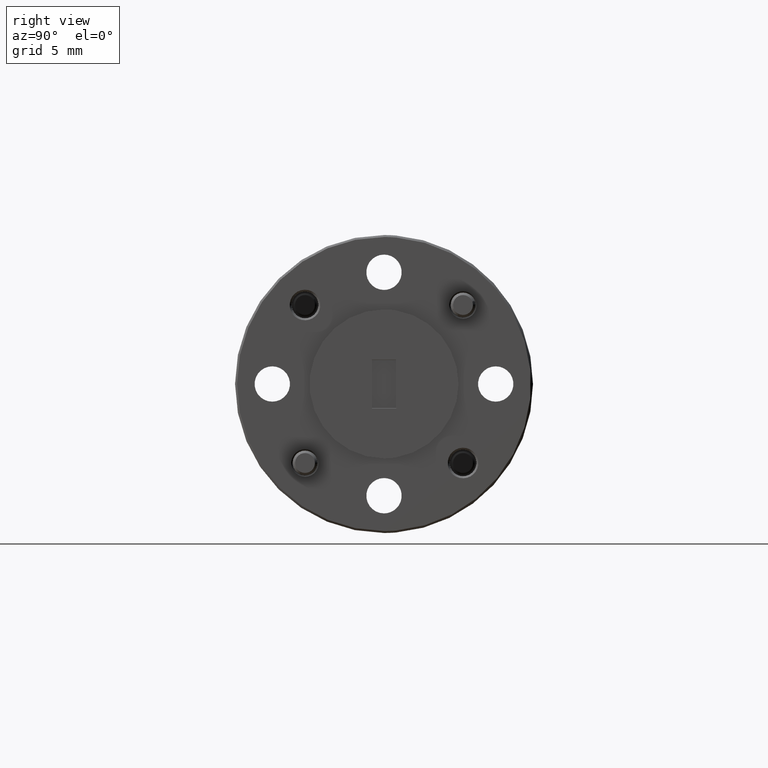
[diagram: clean part render]
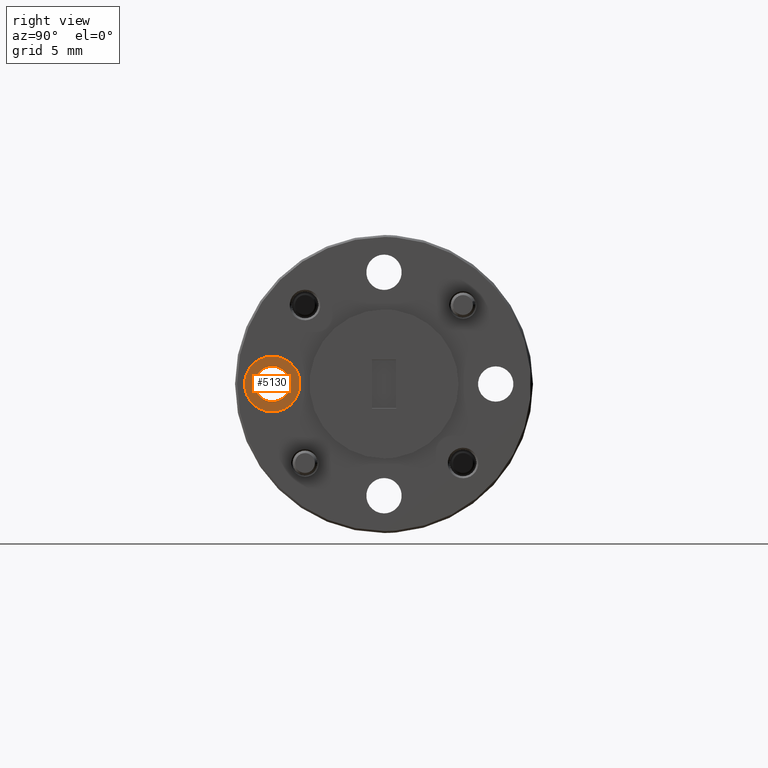
[diagram: same view with one face highlighted and labeled with its STEP entity id]
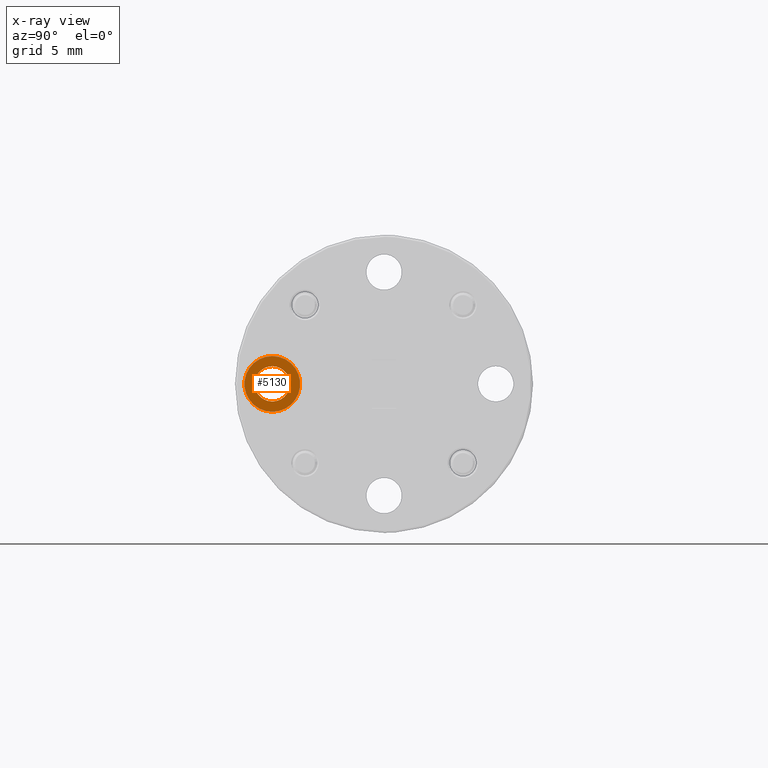
[diagram: x-ray of the same camera — body ghosted, the highlighted face saturated]
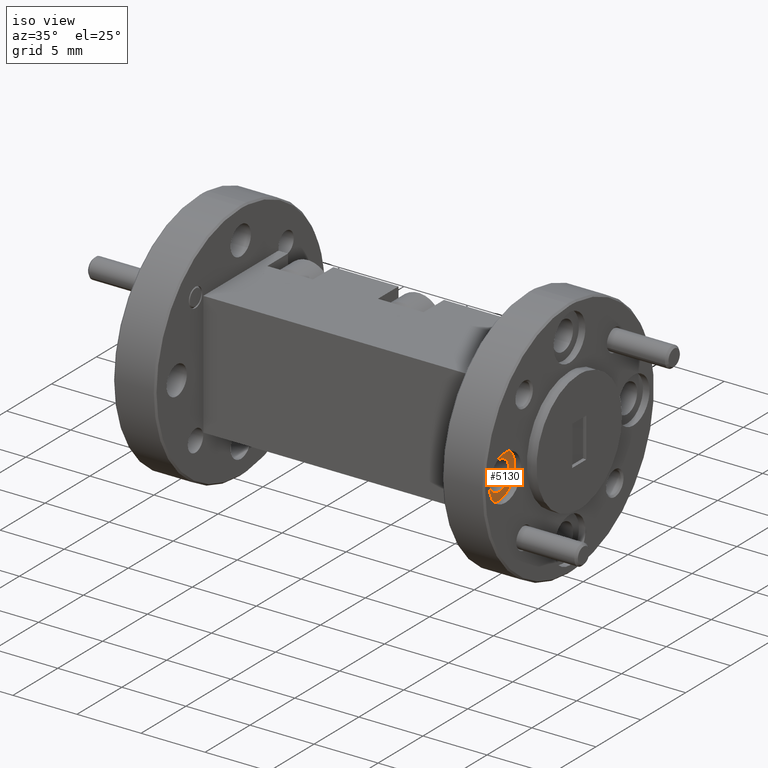
[diagram: same view with one face highlighted and labeled with its STEP entity id]
A machine part, right view. The second image highlights one B-rep face of the part: STEP entity #5130.
The next image is the same camera in x-ray: the body ghosted, the highlighted face saturated — about 0% of this face is hidden behind the body in this view.
A second angle (iso view) of the same face is appended — the face is thin or edge-on in the first view.
In plain terms, the highlighted planar face has unit normal (1, 0, 0).
Its self-contained STEP definition (entity closure, byte-faithful):
#120 = VERTEX_POINT ( 'NONE', #495 ) ;
#135 = EDGE_CURVE ( 'NONE', #7963, #2879, #4696, .T. ) ;
#495 = CARTESIAN_POINT ( 'NONE',  ( 0.5500000000000000400, -0.3117500000000016900, -0.07000000000000068700 ) ) ;
#526 = FACE_OUTER_BOUND ( 'NONE', #1041, .T. ) ;
#878 = CIRCLE ( 'NONE', #7369, 0.04450000000000006700 ) ;
#1041 = EDGE_LOOP ( 'NONE', ( #5490, #2465 ) ) ;
#1127 = PLANE ( 'NONE',  #2796 ) ;
#2056 = EDGE_CURVE ( 'NONE', #3855, #120, #5623, .T. ) ;
#2101 = EDGE_CURVE ( 'NONE', #2879, #7963, #878, .T. ) ;
#2204 = DIRECTION ( 'NONE',  ( 1.000000000000000000, 0.0000000000000000000, 0.0000000000000000000 ) ) ;
#2465 = ORIENTED_EDGE ( 'NONE', *, *, #2056, .T. ) ;
#2785 = CARTESIAN_POINT ( 'NONE',  ( 0.5500000000000000400, -0.3117500000000008600, -4.695363739110467400E-016 ) ) ;
#2796 = AXIS2_PLACEMENT_3D ( 'NONE', #5661, #4714, #5701 ) ;
#2879 = VERTEX_POINT ( 'NONE', #11312 ) ;
#3855 = VERTEX_POINT ( 'NONE', #10918 ) ;
#4274 = EDGE_CURVE ( 'NONE', #120, #3855, #9494, .T. ) ;
#4287 = AXIS2_PLACEMENT_3D ( 'NONE', #2785, #9794, #5474 ) ;
#4696 = CIRCLE ( 'NONE', #4287, 0.04450000000000006700 ) ;
#4714 = DIRECTION ( 'NONE',  ( 1.000000000000000000, 0.0000000000000000000, 0.0000000000000000000 ) ) ;
#4908 = CARTESIAN_POINT ( 'NONE',  ( 0.5500000000000000400, -0.3117500000000008600, 0.04449999999999947700 ) ) ;
#5130 = ADVANCED_FACE ( 'NONE', ( #8790, #526 ), #1127, .T. ) ;
#5474 = DIRECTION ( 'NONE',  ( 0.0000000000000000000, 0.0000000000000000000, -1.000000000000000000 ) ) ;
#5490 = ORIENTED_EDGE ( 'NONE', *, *, #4274, .T. ) ;
#5623 = CIRCLE ( 'NONE', #10340, 0.07000000000000021500 ) ;
#5661 = CARTESIAN_POINT ( 'NONE',  ( 0.5500000000000000400, -0.3117500000000016900, -4.695363739110481200E-016 ) ) ;
#5701 = DIRECTION ( 'NONE',  ( 0.0000000000000000000, 0.0000000000000000000, -1.000000000000000000 ) ) ;
#5765 = DIRECTION ( 'NONE',  ( 0.0000000000000000000, 0.0000000000000000000, -1.000000000000000000 ) ) ;
#5841 = CARTESIAN_POINT ( 'NONE',  ( 0.5500000000000000400, -0.3117500000000016900, -4.695363739110481200E-016 ) ) ;
#6657 = CARTESIAN_POINT ( 'NONE',  ( 0.5500000000000000400, -0.3117500000000016900, -4.695363739110481200E-016 ) ) ;
#7093 = ORIENTED_EDGE ( 'NONE', *, *, #2101, .F. ) ;
#7369 = AXIS2_PLACEMENT_3D ( 'NONE', #11224, #7581, #9337 ) ;
#7581 = DIRECTION ( 'NONE',  ( 1.000000000000000000, 0.0000000000000000000, 0.0000000000000000000 ) ) ;
#7963 = VERTEX_POINT ( 'NONE', #4908 ) ;
#8428 = DIRECTION ( 'NONE',  ( 1.000000000000000000, 0.0000000000000000000, 0.0000000000000000000 ) ) ;
#8651 = EDGE_LOOP ( 'NONE', ( #7093, #11084 ) ) ;
#8790 = FACE_BOUND ( 'NONE', #8651, .T. ) ;
#9337 = DIRECTION ( 'NONE',  ( 0.0000000000000000000, 0.0000000000000000000, -1.000000000000000000 ) ) ;
#9494 = CIRCLE ( 'NONE', #11461, 0.07000000000000021500 ) ;
#9794 = DIRECTION ( 'NONE',  ( 1.000000000000000000, 0.0000000000000000000, 0.0000000000000000000 ) ) ;
#10227 = DIRECTION ( 'NONE',  ( 0.0000000000000000000, 0.0000000000000000000, -1.000000000000000000 ) ) ;
#10340 = AXIS2_PLACEMENT_3D ( 'NONE', #6657, #2204, #10227 ) ;
#10918 = CARTESIAN_POINT ( 'NONE',  ( 0.5500000000000000400, -0.3117500000000016900, 0.06999999999999953500 ) ) ;
#11084 = ORIENTED_EDGE ( 'NONE', *, *, #135, .F. ) ;
#11224 = CARTESIAN_POINT ( 'NONE',  ( 0.5500000000000000400, -0.3117500000000008600, -4.695363739110467400E-016 ) ) ;
#11312 = CARTESIAN_POINT ( 'NONE',  ( 0.5500000000000000400, -0.3117500000000008600, -0.04450000000000053200 ) ) ;
#11461 = AXIS2_PLACEMENT_3D ( 'NONE', #5841, #8428, #5765 ) ;